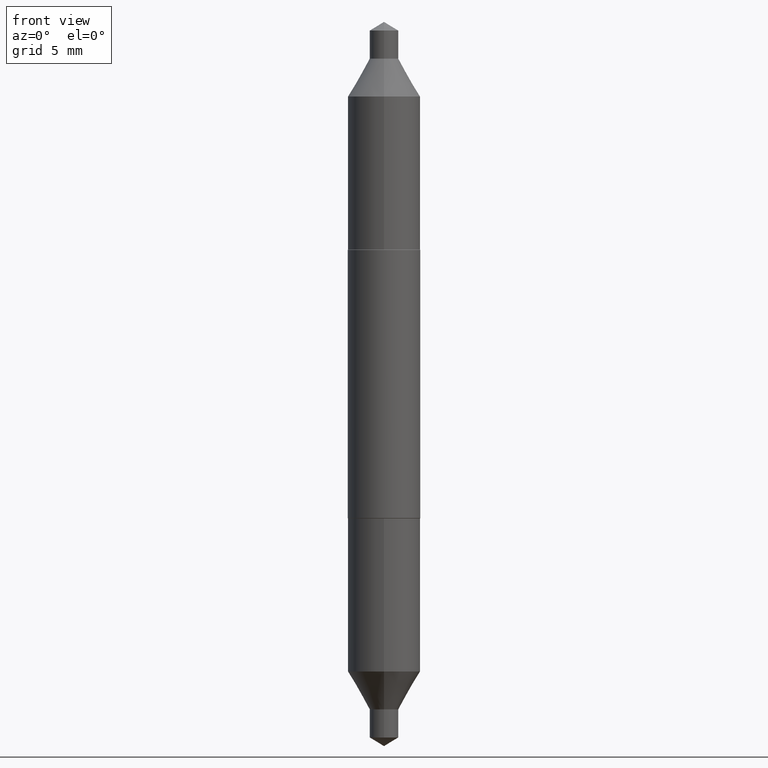
[diagram: clean part render]
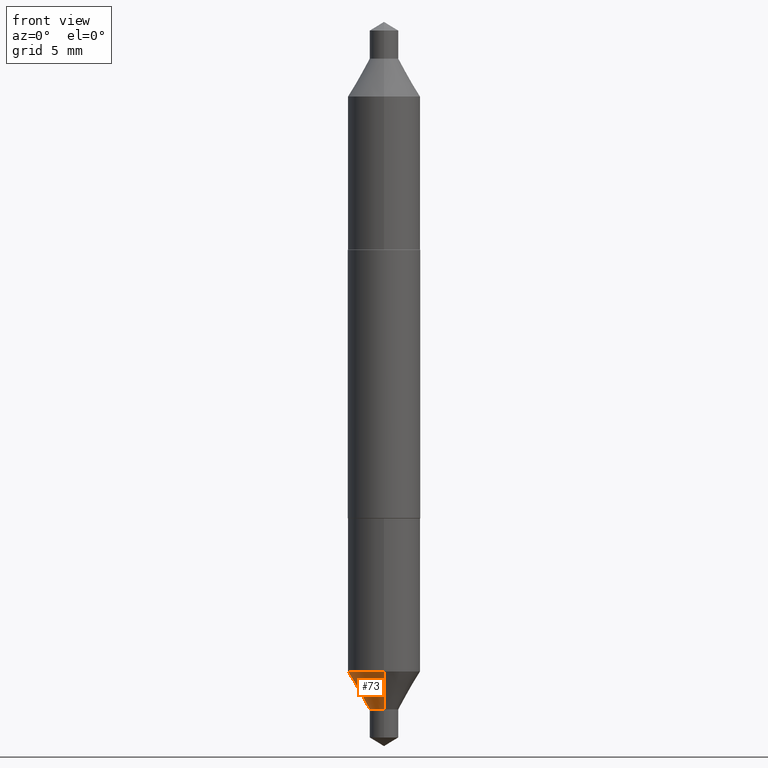
[diagram: same view with one face highlighted and labeled with its STEP entity id]
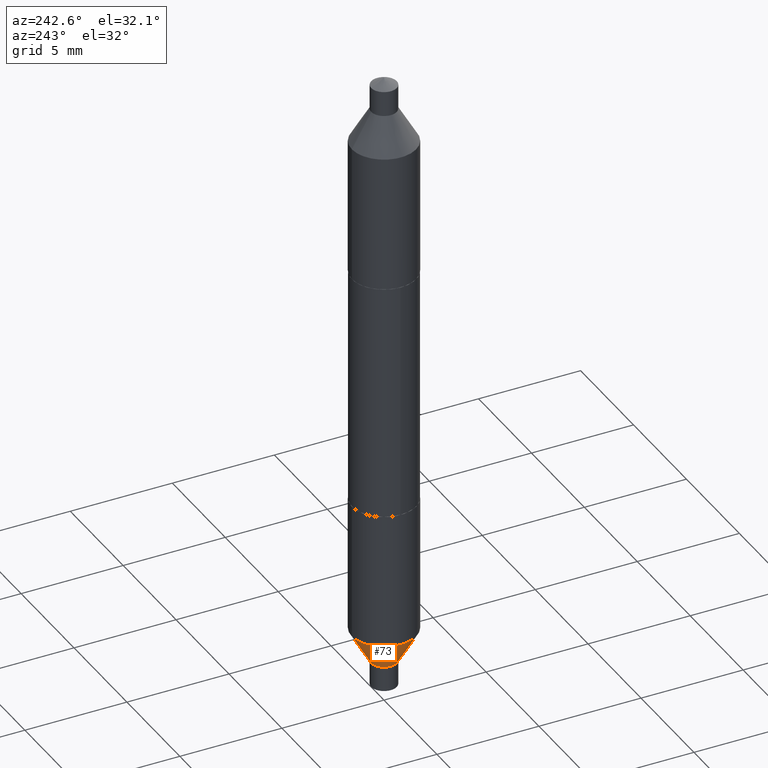
[diagram: same view with one face highlighted and labeled with its STEP entity id]
A machine part, front view. The second image highlights one B-rep face of the part: STEP entity #73.
A second angle (auxiliary view) of the same face is appended — the face is thin or edge-on in the first view.
In plain terms, the highlighted conical surface has half-angle 30 deg.
Its self-contained STEP definition (entity closure, byte-faithful):
#25 = CIRCLE ( 'NONE', #423, 0.06200000000000000649 ) ;
#55 = VECTOR ( 'NONE', #282, 39.37007874015748854 ) ;
#61 = ORIENTED_EDGE ( 'NONE', *, *, #355, .T. ) ;
#73 = ADVANCED_FACE ( 'NONE', ( #353 ), #219, .T. ) ;
#79 = EDGE_CURVE ( 'NONE', #429, #437, #183, .T. ) ;
#81 = CARTESIAN_POINT ( 'NONE',  ( -1.717808818710683337E-16, -0.02460000000000191547, -0.5569999999999999396 ) ) ;
#122 = CARTESIAN_POINT ( 'NONE',  ( -4.329436860165363856E-16, -0.06200000000000171346, -0.4922212997969227510 ) ) ;
#170 = ORIENTED_EDGE ( 'NONE', *, *, #79, .F. ) ;
#183 = LINE ( 'NONE', #608, #55 ) ;
#215 = CARTESIAN_POINT ( 'NONE',  ( 4.405364961712710854E-16, 0.06199999999999830647, -0.4922212997969231396 ) ) ;
#219 = CONICAL_SURFACE ( 'NONE', #678, 0.02459999999999998646, 0.5235987755982924874 ) ;
#282 = DIRECTION ( 'NONE',  ( 3.552713678800440187E-15, 0.4999999999999974465, 0.8660254037844400399 ) ) ;
#304 = DIRECTION ( 'NONE',  ( -6.982962677686265922E-15, -1.000000000000000000, 3.304654831045479413E-15 ) ) ;
#328 = VERTEX_POINT ( 'NONE', #366 ) ;
#337 = DIRECTION ( 'NONE',  ( -6.982962677686265922E-15, -1.000000000000000000, 2.776268286244171659E-15 ) ) ;
#343 = EDGE_CURVE ( 'NONE', #437, #654, #25, .T. ) ;
#349 = DIRECTION ( 'NONE',  ( -2.473974349157782882E-29, 3.450659778871567200E-15, 1.000000000000000000 ) ) ;
#353 = FACE_OUTER_BOUND ( 'NONE', #426, .T. ) ;
#355 = EDGE_CURVE ( 'NONE', #328, #654, #369, .T. ) ;
#366 = CARTESIAN_POINT ( 'NONE',  ( -1.717808818710683337E-16, -0.02460000000000191547, -0.5569999999999999396 ) ) ;
#369 = LINE ( 'NONE', #81, #517 ) ;
#380 = ORIENTED_EDGE ( 'NONE', *, *, #644, .T. ) ;
#396 = CARTESIAN_POINT ( 'NONE',  ( 1.371447437597176321E-29, -1.931406455624925954E-15, -0.5569999999999999396 ) ) ;
#423 = AXIS2_PLACEMENT_3D ( 'NONE', #528, #626, #304 ) ;
#426 = EDGE_LOOP ( 'NONE', ( #170, #380, #61, #548 ) ) ;
#429 = VERTEX_POINT ( 'NONE', #695 ) ;
#434 = CIRCLE ( 'NONE', #470, 0.02459999999999998646 ) ;
#437 = VERTEX_POINT ( 'NONE', #215 ) ;
#470 = AXIS2_PLACEMENT_3D ( 'NONE', #499, #349, #337 ) ;
#499 = CARTESIAN_POINT ( 'NONE',  ( 1.371447437597176321E-29, -1.931406455624925954E-15, -0.5569999999999999396 ) ) ;
#515 = DIRECTION ( 'NONE',  ( -6.982962677686265922E-15, -1.000000000000000000, 2.776268286244171659E-15 ) ) ;
#517 = VECTOR ( 'NONE', #522, 39.37007874015748854 ) ;
#522 = DIRECTION ( 'NONE',  ( -3.491481338843115211E-15, -0.4999999999999913403, 0.8660254037844434816 ) ) ;
#528 = CARTESIAN_POINT ( 'NONE',  ( 1.211186594922981775E-29, -1.707877200306588786E-15, -0.4922212997969229731 ) ) ;
#548 = ORIENTED_EDGE ( 'NONE', *, *, #343, .F. ) ;
#606 = DIRECTION ( 'NONE',  ( -2.473974349157782882E-29, 3.450659778871567200E-15, 1.000000000000000000 ) ) ;
#608 = CARTESIAN_POINT ( 'NONE',  ( 1.747935129969982313E-16, 0.02459999999999805745, -0.5570000000000000506 ) ) ;
#626 = DIRECTION ( 'NONE',  ( -2.473974349157782882E-29, 3.450659778871567200E-15, 1.000000000000000000 ) ) ;
#644 = EDGE_CURVE ( 'NONE', #429, #328, #434, .T. ) ;
#654 = VERTEX_POINT ( 'NONE', #122 ) ;
#678 = AXIS2_PLACEMENT_3D ( 'NONE', #396, #606, #515 ) ;
#695 = CARTESIAN_POINT ( 'NONE',  ( 1.747935129969994146E-16, 0.02459999999999805398, -0.5570000000000000506 ) ) ;